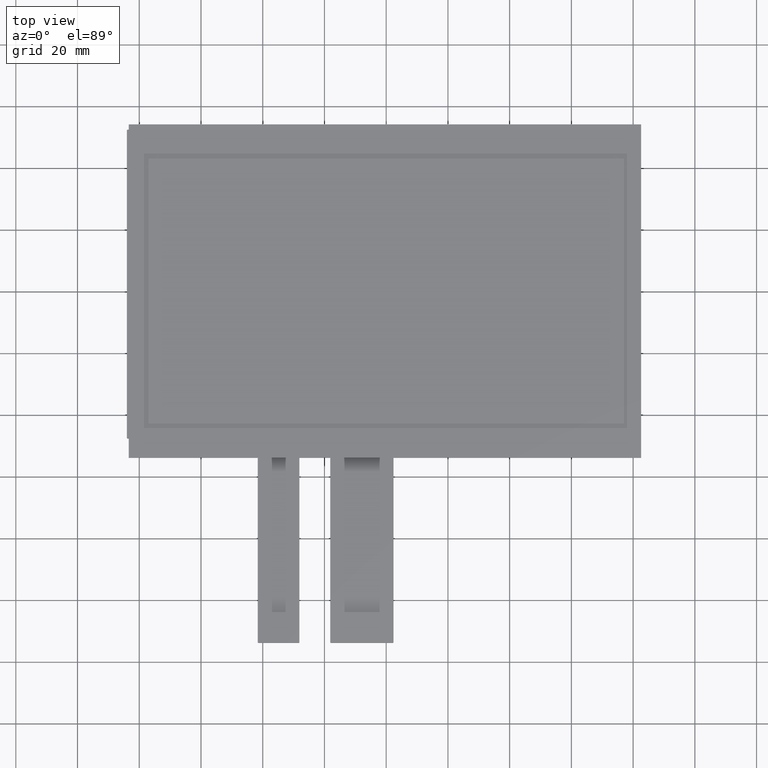
[diagram: clean part render]
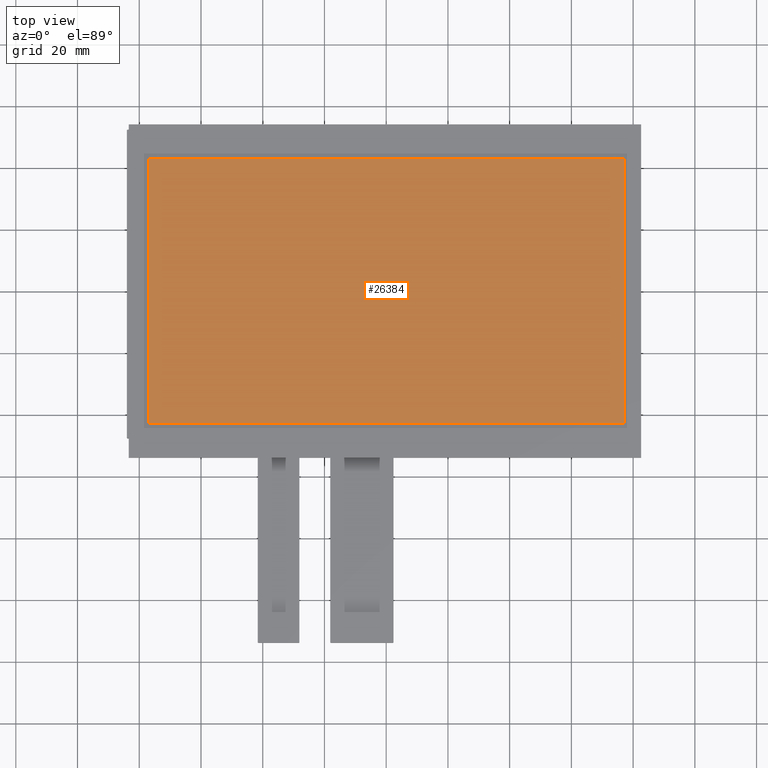
[diagram: same view with one face highlighted and labeled with its STEP entity id]
A machine part, top view. The second image highlights one B-rep face of the part: STEP entity #26384.
In plain terms, the highlighted planar face has unit normal (0, 0, 1).
Its self-contained STEP definition (entity closure, byte-faithful):
#1114=FACE_OUTER_BOUND('',#2498,.T.);
#2498=EDGE_LOOP('',(#19042,#19043,#19044,#19045));
#4569=LINE('',#38363,#8039);
#4573=LINE('',#38371,#8043);
#4576=LINE('',#38377,#8046);
#4579=LINE('',#38382,#8049);
#8039=VECTOR('',#30934,10.);
#8043=VECTOR('',#30940,10.);
#8046=VECTOR('',#30945,10.);
#8049=VECTOR('',#30950,10.);
#11202=VERTEX_POINT('',#38361);
#11203=VERTEX_POINT('',#38362);
#11206=VERTEX_POINT('',#38370);
#11208=VERTEX_POINT('',#38376);
#14098=EDGE_CURVE('',#11202,#11203,#4569,.T.);
#14102=EDGE_CURVE('',#11206,#11202,#4573,.T.);
#14105=EDGE_CURVE('',#11208,#11206,#4576,.T.);
#14108=EDGE_CURVE('',#11203,#11208,#4579,.T.);
#19042=ORIENTED_EDGE('',*,*,#14098,.T.);
#19043=ORIENTED_EDGE('',*,*,#14108,.T.);
#19044=ORIENTED_EDGE('',*,*,#14105,.T.);
#19045=ORIENTED_EDGE('',*,*,#14102,.T.);
#25214=PLANE('',#27800);
#26384=ADVANCED_FACE('',(#1114),#25214,.T.);
#27800=AXIS2_PLACEMENT_3D('',#38426,#30992,#30993);
#30934=DIRECTION('',(-1.,0.,0.));
#30940=DIRECTION('',(0.,1.,0.));
#30945=DIRECTION('',(1.,0.,0.));
#30950=DIRECTION('',(0.,-1.,0.));
#30992=DIRECTION('center_axis',(0.,0.,1.));
#30993=DIRECTION('ref_axis',(-1.,0.,0.));
#38361=CARTESIAN_POINT('',(77.1,42.9597566730066,0.));
#38362=CARTESIAN_POINT('',(-77.1,42.9597566730066,0.));
#38363=CARTESIAN_POINT('',(38.35,42.9597566730066,0.));
#38370=CARTESIAN_POINT('',(77.1,-42.9602433269934,0.));
#38371=CARTESIAN_POINT('',(77.1,-21.4802433269934,0.));
#38376=CARTESIAN_POINT('',(-77.1,-42.9602433269934,0.));
#38377=CARTESIAN_POINT('',(-38.75,-42.9602433269934,0.));
#38382=CARTESIAN_POINT('',(-77.1,21.4797566730066,0.));
#38426=CARTESIAN_POINT('Origin',(-0.399999999999991,-0.000243326993416559,
0.));